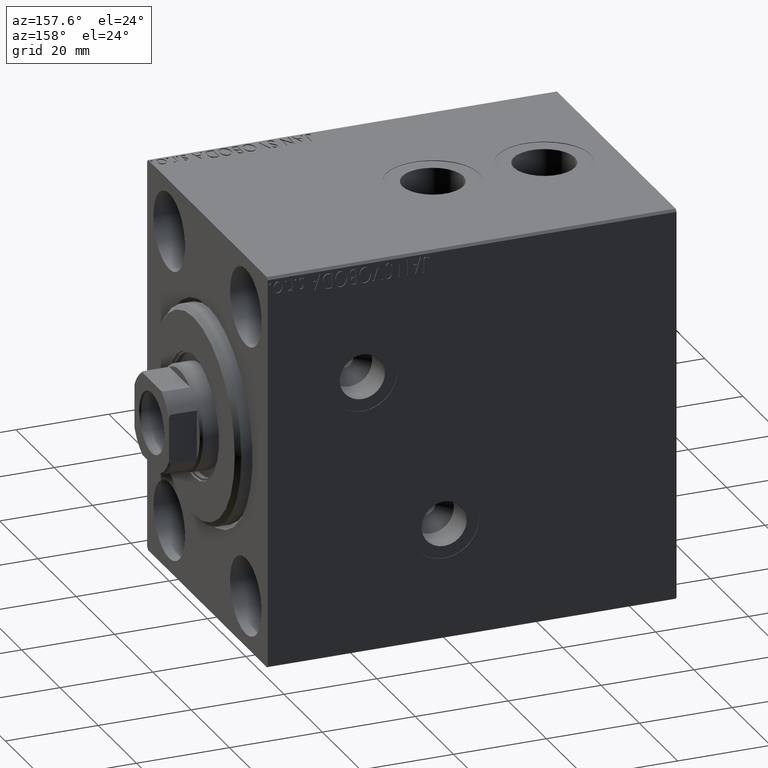
[diagram: clean part render]
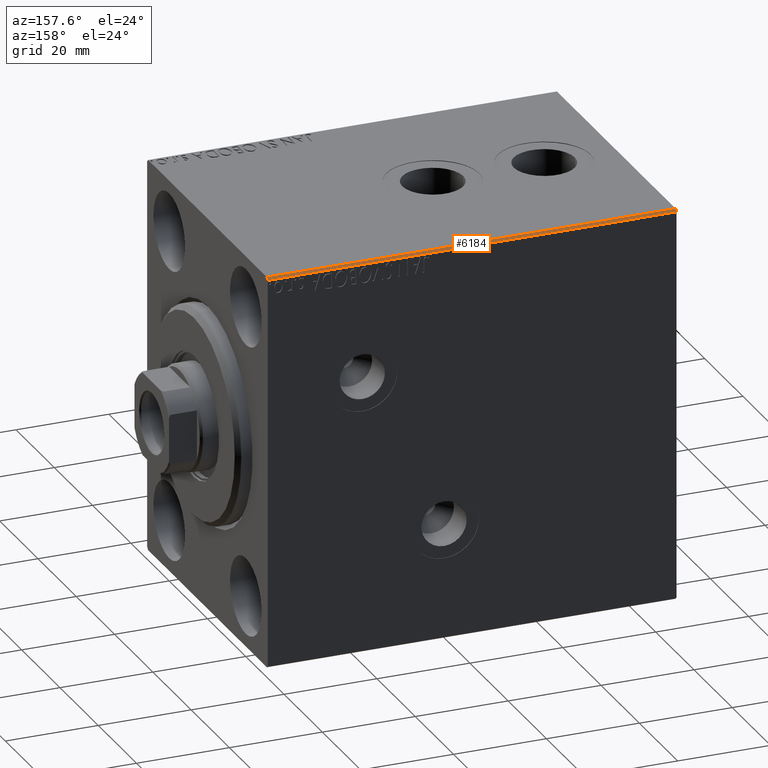
[diagram: same view with one face highlighted and labeled with its STEP entity id]
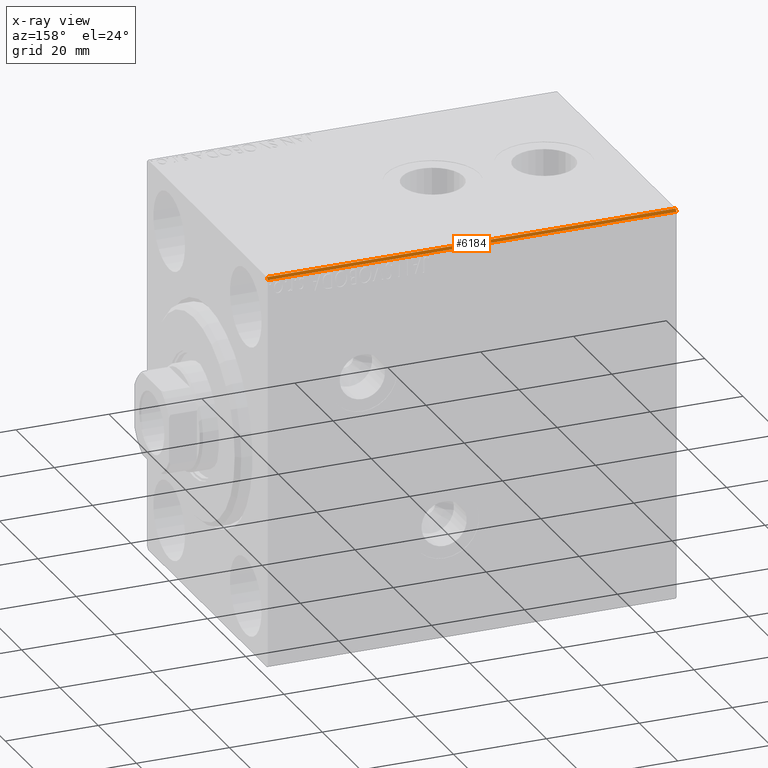
[diagram: x-ray of the same camera — body ghosted, the highlighted face saturated]
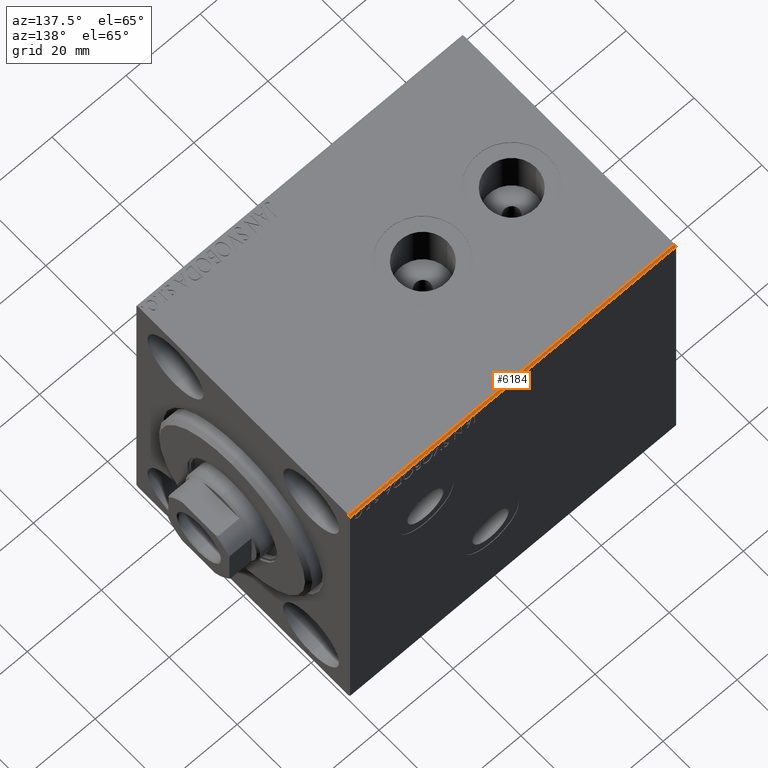
[diagram: same view with one face highlighted and labeled with its STEP entity id]
A machine part, auxiliary view. The second image highlights one B-rep face of the part: STEP entity #6184.
The next image is the same camera in x-ray: the body ghosted, the highlighted face saturated — about 0% of this face is hidden behind the body in this view.
A second angle (auxiliary view) of the same face is appended — the face is thin or edge-on in the first view.
In plain terms, the highlighted planar face has unit normal (-0, -0.7071, -0.7071).
Its self-contained STEP definition (entity closure, byte-faithful):
#61 = EDGE_CURVE ( 'NONE', #42008, #33316, #26819, .T. ) ;
#1165 = ORIENTED_EDGE ( 'NONE', *, *, #34324, .F. ) ;
#1846 = ORIENTED_EDGE ( 'NONE', *, *, #34661, .F. ) ;
#3683 = DIRECTION ( 'NONE',  ( -1.000000000000000000, 0.000000000000000000, 0.000000000000000000 ) ) ;
#4990 = EDGE_CURVE ( 'NONE', #33316, #31678, #12080, .T. ) ;
#6184 = ADVANCED_FACE ( 'NONE', ( #41102 ), #13597, .F. ) ;
#6186 = VECTOR ( 'NONE', #43295, 1000.000000000000000 ) ;
#6376 = CARTESIAN_POINT ( 'NONE',  ( 88.00000000000000000, 31.50000000000001421, -42.00000000000003553 ) ) ;
#6429 = CARTESIAN_POINT ( 'NONE',  ( 88.00000000000000000, 31.50000000000001421, -42.00000000000003553 ) ) ;
#8030 = CARTESIAN_POINT ( 'NONE',  ( 0.000000000000000000, 31.00000000000004263, -42.50000000000000711 ) ) ;
#8299 = DIRECTION ( 'NONE',  ( 0.000000000000000000, -0.7071067811865474617, -0.7071067811865474617 ) ) ;
#9023 = CARTESIAN_POINT ( 'NONE',  ( 88.00000000000000000, 31.00000000000004263, -42.50000000000000711 ) ) ;
#9916 = CARTESIAN_POINT ( 'NONE',  ( 88.00000000000000000, 36.75000000000002842, -36.75000000000002842 ) ) ;
#11689 = CARTESIAN_POINT ( 'NONE',  ( 0.000000000000000000, 31.50000000000001421, -42.00000000000003553 ) ) ;
#12080 = LINE ( 'NONE', #6429, #37160 ) ;
#13597 = PLANE ( 'NONE',  #42947 ) ;
#15920 = CARTESIAN_POINT ( 'NONE',  ( 88.00000000000000000, 31.50000000000001421, -42.00000000000003553 ) ) ;
#22551 = LINE ( 'NONE', #9023, #6186 ) ;
#22796 = ORIENTED_EDGE ( 'NONE', *, *, #61, .F. ) ;
#26319 = LINE ( 'NONE', #11689, #42903 ) ;
#26819 = LINE ( 'NONE', #9916, #34302 ) ;
#28380 = ORIENTED_EDGE ( 'NONE', *, *, #4990, .F. ) ;
#31120 = EDGE_LOOP ( 'NONE', ( #22796, #1165, #1846, #28380 ) ) ;
#31678 = VERTEX_POINT ( 'NONE', #42671 ) ;
#32380 = VERTEX_POINT ( 'NONE', #8030 ) ;
#33316 = VERTEX_POINT ( 'NONE', #15920 ) ;
#34302 = VECTOR ( 'NONE', #37432, 1000.000000000000114 ) ;
#34324 = EDGE_CURVE ( 'NONE', #32380, #42008, #22551, .T. ) ;
#34661 = EDGE_CURVE ( 'NONE', #31678, #32380, #26319, .T. ) ;
#37160 = VECTOR ( 'NONE', #38001, 1000.000000000000000 ) ;
#37432 = DIRECTION ( 'NONE',  ( -0.000000000000000000, 0.7071067811865474617, 0.7071067811865474617 ) ) ;
#38001 = DIRECTION ( 'NONE',  ( -1.000000000000000000, 0.000000000000000000, 0.000000000000000000 ) ) ;
#38402 = CARTESIAN_POINT ( 'NONE',  ( 88.00000000000000000, 31.00000000000004263, -42.50000000000000711 ) ) ;
#41102 = FACE_OUTER_BOUND ( 'NONE', #31120, .T. ) ;
#42008 = VERTEX_POINT ( 'NONE', #38402 ) ;
#42671 = CARTESIAN_POINT ( 'NONE',  ( 0.000000000000000000, 31.50000000000001421, -42.00000000000003553 ) ) ;
#42903 = VECTOR ( 'NONE', #8299, 1000.000000000000114 ) ;
#42947 = AXIS2_PLACEMENT_3D ( 'NONE', #6376, #44238, #3683 ) ;
#43295 = DIRECTION ( 'NONE',  ( 1.000000000000000000, 0.000000000000000000, 0.000000000000000000 ) ) ;
#44238 = DIRECTION ( 'NONE',  ( 0.000000000000000000, -0.7071067811865475727, 0.7071067811865475727 ) ) ;